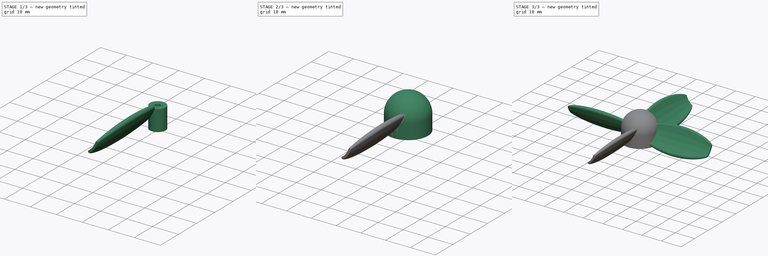
[diagram: build sequence overview — one tinted view per stage of 3, left to right]
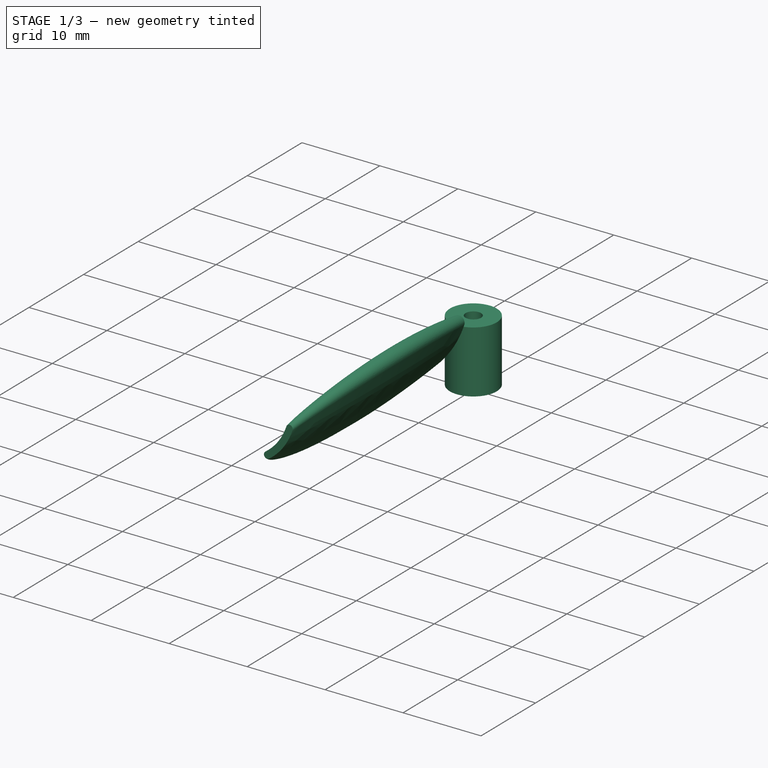
[diagram: stage 1 of 3 — iso view after this stage's code; geometry added in this stage tinted green]
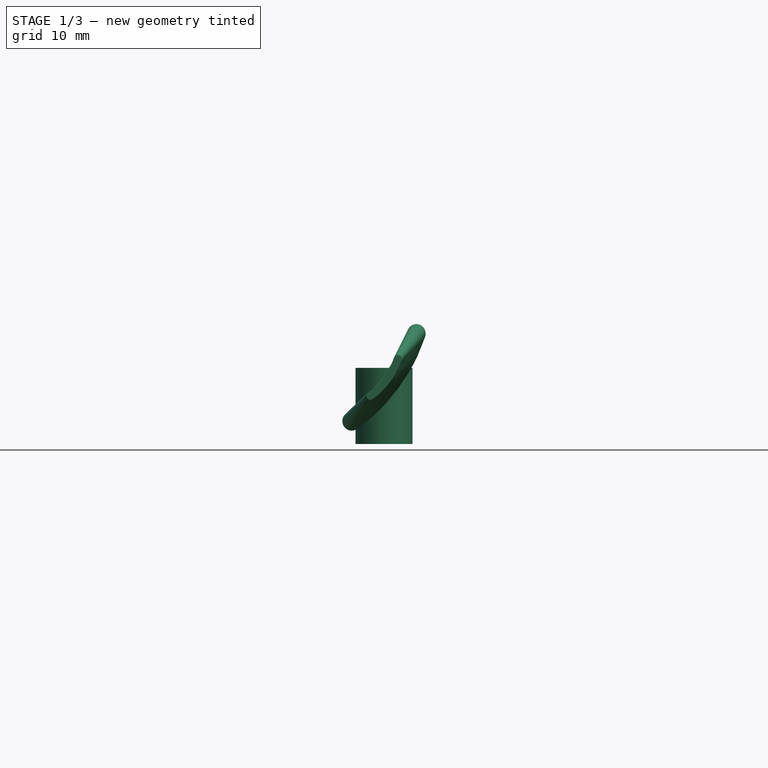
[diagram: stage 1 of 3 — front view after this stage's code; geometry added in this stage tinted green]
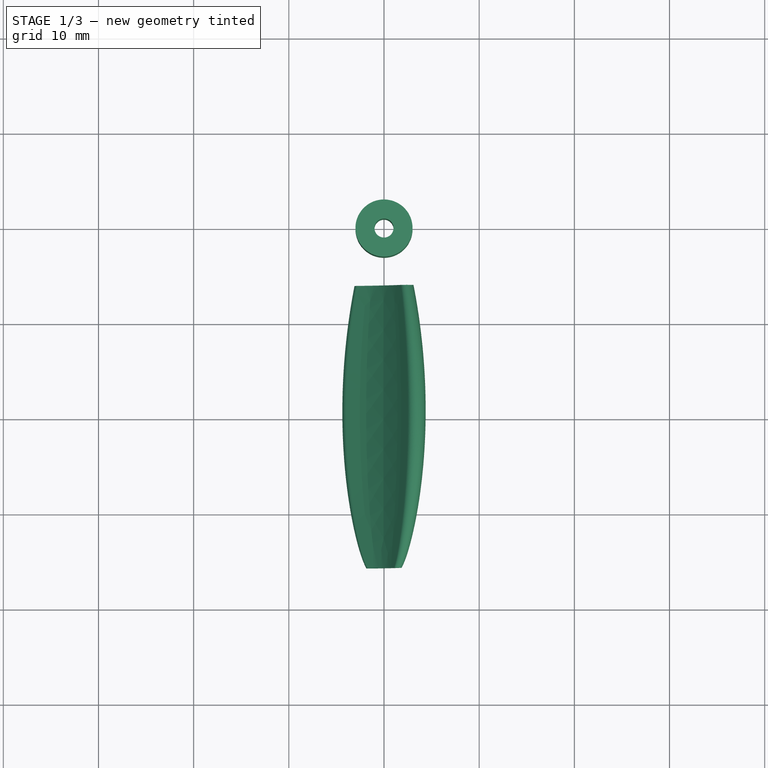
[diagram: stage 1 of 3 — top view after this stage's code; geometry added in this stage tinted green]
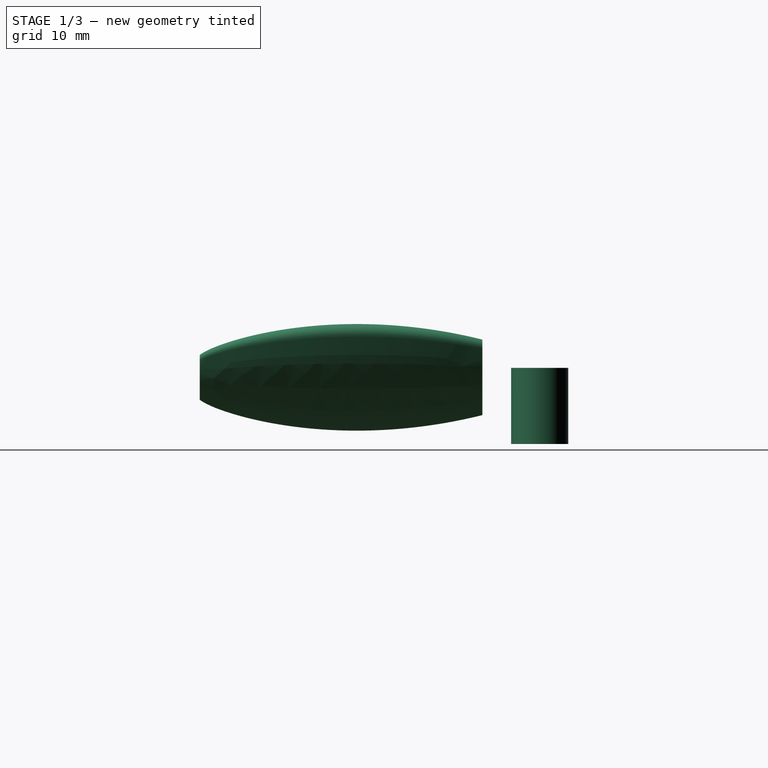
[diagram: stage 1 of 3 — right view after this stage's code; geometry added in this stage tinted green]
FCSTD DOCUMENT  (FreeCAD 1.0R38643 (Git))
Label: propeller
License: All rights reserved
LicenseURL: http://en.wikipedia.org/wiki/All_rights_reserved
objects: Sketcher::SketchObject×6, PartDesign::Plane×2, PartDesign::Pad×2, Part::FeaturePython×1, PartDesign::Revolution×1, PartDesign::SubShapeBinder×1, PartDesign::Boolean×1, PartDesign::PolarPattern×1, PartDesign::Body×1
note: 30 computed .brp shape members not serialized (recipe doc carries the construction recipe); baked Part::Feature solids carry a one-line shape summary decoded from their .brp

FEATURE [Sketcher::SketchObject] Sketch
  ArcFitTolerance = 1e-06
  AttachmentSupport = -> [XY_Plane]
  FullyConstrained = true
  MakeInternals = false
  MapMode = 5
  sketch-geometry (2):
    g0: Circle CenterX=0 CenterY=0 CenterZ=0 NormalX=0 NormalY=0 NormalZ=1 AngleXU=0 Radius=1
    g1: Circle CenterX=0 CenterY=0 CenterZ=0 NormalX=0 NormalY=0 NormalZ=1 AngleXU=0 Radius=3
  constraints (4):
    c: Coincident(g0,g-1)
    c: Coincident(g1,g0)
    c: Diameter(g0) = 2
    c: Diameter(g1) = 6
FEATURE [Sketcher::SketchObject] Sketch001
  ArcFitTolerance = 1e-06
  AttachmentSupport = -> [XZ_Plane]
  FullyConstrained = false
  MakeInternals = false
  MapMode = 5
  Placement = pos=(0,0,0) rot=(1,0,0;1.5708rad)
  sketch-geometry (8):
    g0: ArcOfCircle CenterX=0 CenterY=8 CenterZ=0 NormalX=0 NormalY=0 NormalZ=1 AngleXU=0 Radius=8 StartAngle=1.5708 EndAngle=3.14159
    g1: LineSegment StartX=-8 StartY=8 StartZ=0 EndX=-6 EndY=8 EndZ=0
    g2: LineSegment StartX=-3 StartY=8 StartZ=0 EndX=-3 EndY=13.1962 EndZ=0
    g3: LineSegment StartX=-3 StartY=8 StartZ=0 EndX=-1 EndY=8 EndZ=0
    g4: LineSegment StartX=-1 StartY=8 StartZ=0 EndX=-1 EndY=13.9161 EndZ=0
    g5: ArcOfCircle CenterX=0 CenterY=8 CenterZ=0 NormalX=0 NormalY=0 NormalZ=1 AngleXU=0 Radius=6 StartAngle=1.5708 EndAngle=1.73824
    g6: ArcOfCircle CenterX=0 CenterY=8 CenterZ=0 NormalX=0 NormalY=0 NormalZ=1 AngleXU=0 Radius=6 StartAngle=2.0944 EndAngle=3.14159
    g7: LineSegment StartX=5e-16 StartY=16 StartZ=0 EndX=1.63e-14 EndY=14 EndZ=0
  constraints (20):
    c: DistanceX(g0,g0) = 8
    c: PointOnObject(g0,g-2)
    c: Coincident(g1,g0)
    c: Horizontal(g1)
    c: Vertical(g2)
    c: Coincident(g3,g2)
    c: Coincident(g4,g3)
    c: Vertical(g4)
    c: Coincident(g6,g1)
    c: PointOnObject(g5,g-2)
    c: Horizontal(g1,g2)
    c: Coincident(g0,g5)
    c: Distance(g1,g1) = 2
    c: PointOnObject(g2,g6)
    c: Equal(g5,g6)
    c: Coincident(g5,g4)
    c: PointOnObject(g6,g2)
    c: Coincident(g5,g6)
    c: Coincident(g7,g0)
    c: Coincident(g7,g5)
FEATURE [Sketcher::SketchObject] Sketch003
  ArcFitTolerance = 1e-06
  AttachmentOffset = pos=(0,0,6) rot=(0,0,1;0rad)
  AttachmentSupport = -> [XZ_Plane]
  FullyConstrained = false
  MakeInternals = false
  MapMode = 5
  Placement = pos=(0,-6,1.3e-15) rot=(1,0,0;1.5708rad)
  sketch-geometry (4):
    g0: ArcOfCircle CenterX=-10.4556 CenterY=14.5912 CenterZ=0 NormalX=0 NormalY=0 NormalZ=1 AngleXU=0 Radius=13.0385 StartAngle=5.31324 EndAngle=5.94797
    g1: ArcOfCircle CenterX=-10.4556 CenterY=14.5912 CenterZ=0 NormalX=0 NormalY=0 NormalZ=1 AngleXU=0 Radius=14.5385 StartAngle=5.31324 EndAngle=5.94797
    g2: ArcOfCircle CenterX=-2.66038 CenterY=3.21765 CenterZ=0 NormalX=0 NormalY=0 NormalZ=1 AngleXU=0 Radius=0.75 StartAngle=2.17164 EndAngle=5.31324
    g3: ArcOfCircle CenterX=2.56545 CenterY=10.0552 CenterZ=0 NormalX=0 NormalY=0 NormalZ=1 AngleXU=0 Radius=0.75 StartAngle=5.94797 EndAngle=9.08956
  constraints (6):
    c: Coincident(g1,g0)
    c: Tangent(g2,g0) = 1.5708
    c: Tangent(g2,g1) = -1.5708
    c: Tangent(g3,g0) = 1.5708
    c: Tangent(g3,g1) = -1.5708
    c: Distance(g0,g1) = 1.5
FEATURE [PartDesign::Plane] DatumPlane
  AttachmentOffset = pos=(0,0,7) rot=(0,-1,0;0.907571rad)
  AttachmentSupport = -> [XY_Plane]
  Length = 98.8252
  MapMode = 5
  Placement = pos=(0,0,7) rot=(0,-1,0;0.907571rad)
  ResizeMode = 0
  Width = 86.8846
FEATURE [Sketcher::SketchObject] Sketch004
  ArcFitTolerance = 1e-06
  AttachmentSupport = -> [DatumPlane]
  ExternalGeometry = -> [Sketch003]
  FullyConstrained = false
  MakeInternals = false
  MapMode = 5
  Placement = pos=(0,0,7) rot=(0,-1,0;0.907571rad)
  sketch-geometry (14):
    g0: Circle [constr] CenterX=-10.3432 CenterY=-22.787 CenterZ=0 NormalX=0 NormalY=0 NormalZ=1 AngleXU=0 Radius=1
    g1: Circle [constr] CenterX=-3.93662 CenterY=-35.649 CenterZ=0 NormalX=0 NormalY=0 NormalZ=1 AngleXU=0 Radius=1
    g2: BSplineCurve PolesCount=4 KnotsCount=2 Degree=3 IsPeriodic=0
    g3: GeomPoint [constr] X=-5.02646 Y=-6 Z=0
    g4: GeomPoint [constr] X=-2.75298 Y=-35.8752 Z=0
    g5: Circle [constr] CenterX=-5.02646 CenterY=-6 CenterZ=0 NormalX=0 NormalY=0 NormalZ=1 AngleXU=0 Radius=1
    g6: Circle [constr] CenterX=-2.75298 CenterY=-35.8752 CenterZ=0 NormalX=0 NormalY=0 NormalZ=1 AngleXU=0 Radius=1
    g7: Circle [constr] CenterX=10.3432 CenterY=-22.787 CenterZ=0 NormalX=0 NormalY=0 NormalZ=1 AngleXU=0 Radius=1
    g8: Circle [constr] CenterX=3.93662 CenterY=-35.649 CenterZ=0 NormalX=0 NormalY=0 NormalZ=1 AngleXU=0 Radius=1
    g9: BSplineCurve PolesCount=4 KnotsCount=2 Degree=3 IsPeriodic=0
    g10: GeomPoint [constr] X=5.02646 Y=-6 Z=0
    g11: GeomPoint [constr] X=2.75298 Y=-35.8752 Z=0
    g12: Circle [constr] CenterX=5.02646 CenterY=-6 CenterZ=0 NormalX=0 NormalY=0 NormalZ=1 AngleXU=0 Radius=1
    g13: Circle [constr] CenterX=2.75298 CenterY=-35.8752 CenterZ=0 NormalX=0 NormalY=0 NormalZ=1 AngleXU=0 Radius=1
  constraints (20):
    c: Weight(g5) = 1
    c: Equal(g5,g0)
    c: Equal(g5,g1)
    c: Equal(g5,g6)
    c: InternalAlignment(g5,g2)
    c: InternalAlignment(g0,g2)
    c: InternalAlignment(g1,g2)
    c: InternalAlignment(g6,g2)
    c: InternalAlignment(g3,g2)
    c: InternalAlignment(g4,g2)
    c: Weight(g12) = 1
    c: Equal(g12,g7)
    c: Equal(g12,g8)
    c: Equal(g12,g13)
    c: InternalAlignment(g12,g9)
    c: InternalAlignment(g7,g9)
    c: InternalAlignment(g8,g9)
    c: InternalAlignment(g13,g9)
    c: InternalAlignment(g10,g9)
    c: InternalAlignment(g11,g9)
FEATURE [PartDesign::Plane] DatumPlane001
  AttachmentOffset = pos=(0,0,6) rot=(0,-1,0;2.47837rad)
  AttachmentSupport = -> [XY_Plane]
  Length = 102.86
  MapMode = 5
  Placement = pos=(0,0,6) rot=(0,-1,0;2.47837rad)
  ResizeMode = 0
  Width = 87.2231
  expr: .AttachmentOffset.Rotation.Angle = 52 + 90
FEATURE [Sketcher::SketchObject] Sketch005
  ArcFitTolerance = 1e-06
  AttachmentSupport = -> [DatumPlane001]
  ExternalGeometry = -> [Sketch003,Sketch004]
  FullyConstrained = false
  MakeInternals = false
  MapMode = 5
  Placement = pos=(4e-16,0,6) rot=(0,1,0;3.80482rad)
  sketch-geometry (14):
    g0: BSplineCurve PolesCount=4 KnotsCount=2 Degree=3 IsPeriodic=0
    g1-g4: Circle [constr] x4 (B-spline internal-alignment scaffolding for g0; pole/knot coordinates omitted)
    g5: GeomPoint [constr] X=0.819099 Y=-6.02055 Z=0
    g6: GeomPoint [constr] X=1.55398 Y=-35.7031 Z=0
    g7: BSplineCurve PolesCount=4 KnotsCount=2 Degree=3 IsPeriodic=0
    g8-g11: Circle [constr] x4 (B-spline internal-alignment scaffolding for g7; pole/knot coordinates omitted)
    g12: GeomPoint [constr] X=-1.26895 Y=-6.02055 Z=0
    g13: GeomPoint [constr] X=-0.534069 Y=-35.7236 Z=0
  constraints (13):
    c: Weight(g1) = 1
    c: Equal(g1,g2)
    c: Equal(g1,g3)
    c: Equal(g1,g4)
    c: InternalAlignment(g1-g6 -> g0) x6
    c: PointOnObject(g4,g3)
    c: Weight(g8) = 1
    c: Equal(g8,g9)
    c: Equal(g8,g10)
    c: Equal(g8,g11)
    c: InternalAlignment(g8-g13 -> g7) x6
    c: PointOnObject(g11,g10)
    c: Horizontal(g7,g0)
FEATURE [Part::FeaturePython] CurvedArray  # WARN: FeaturePython — macro-defined, semantics opaque (R4)
  Axis = (0,1,0)
  Base = -> Sketch003
  Distribution = 0
  DistributionReverse = false
  Hullcurves = -> [Sketch004,Sketch005]
  Items = 20
  OffsetEnd = 0
  OffsetStart = 0
  Solid = true
  Surface = false
  Twist = 0
FEATURE [PartDesign::Pad] Pad
  Direction = (0,0,1)
  Length = 8
  Length2 = 10
  Profile = -> Sketch
  ReferenceAxis = -> Sketch [N_Axis]
  Suppressed = false
  Type = 0
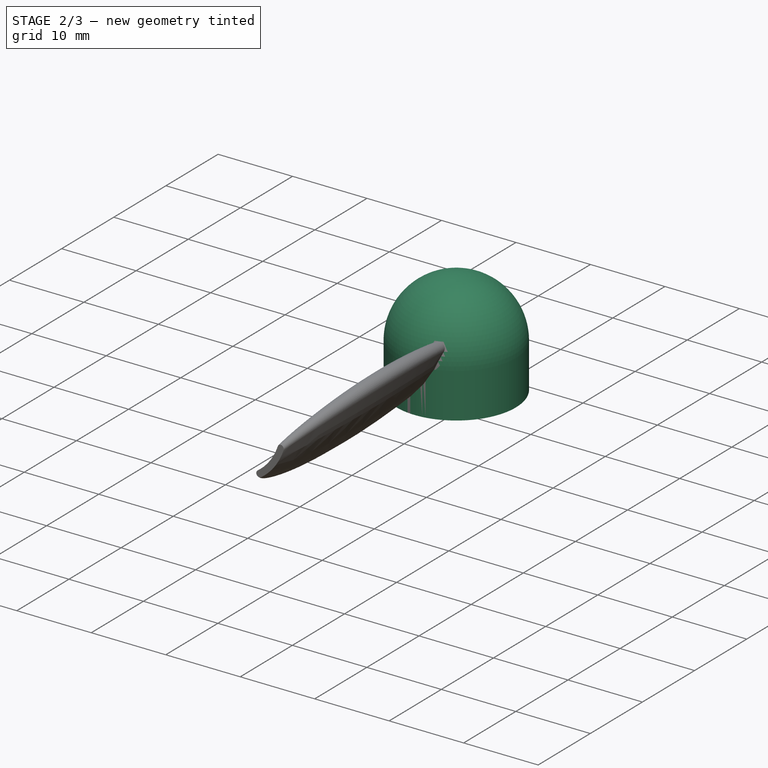
[diagram: stage 2 of 3 — iso view after this stage's code; geometry added in this stage tinted green]
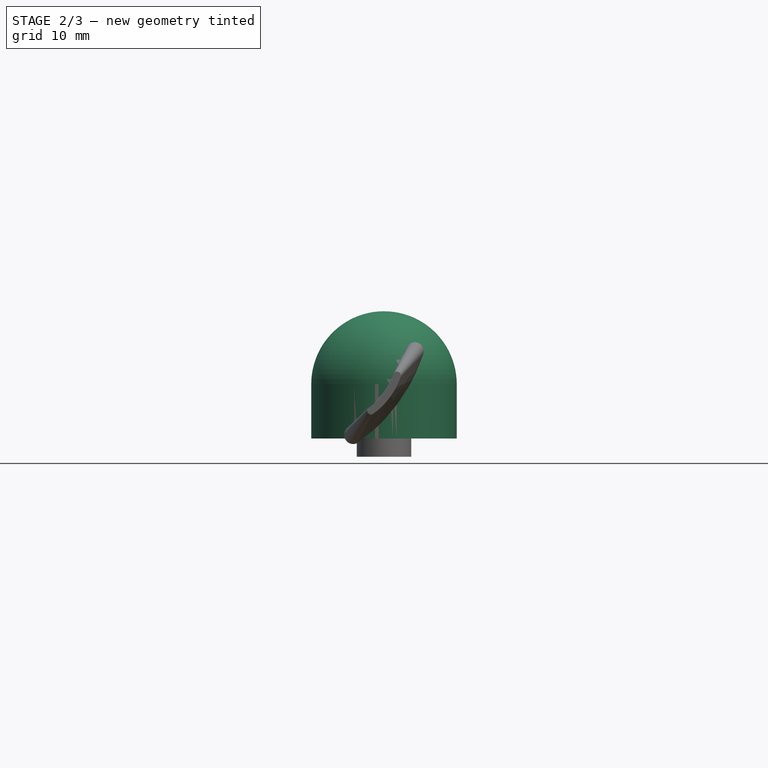
[diagram: stage 2 of 3 — front view after this stage's code; geometry added in this stage tinted green]
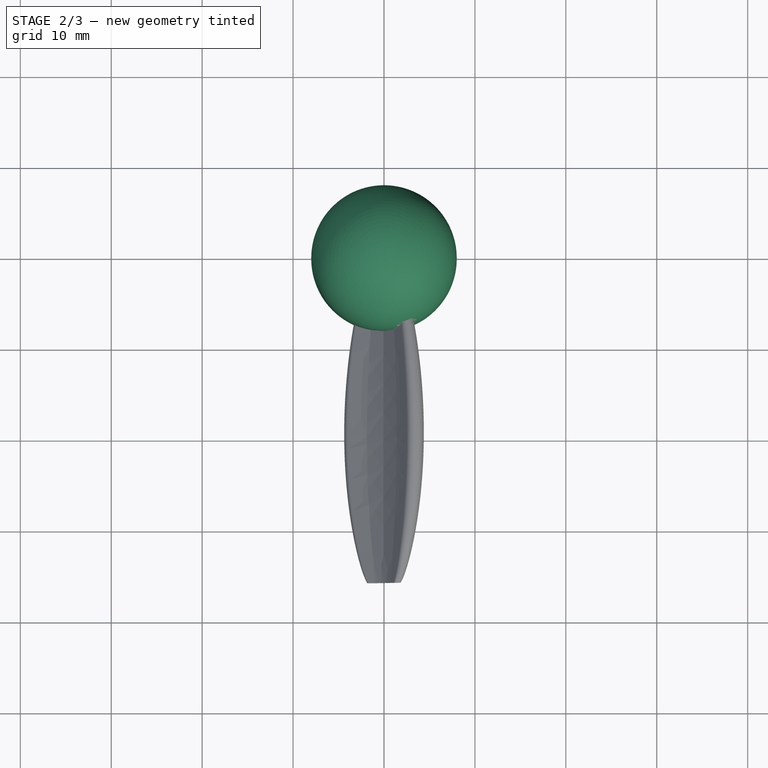
[diagram: stage 2 of 3 — top view after this stage's code; geometry added in this stage tinted green]
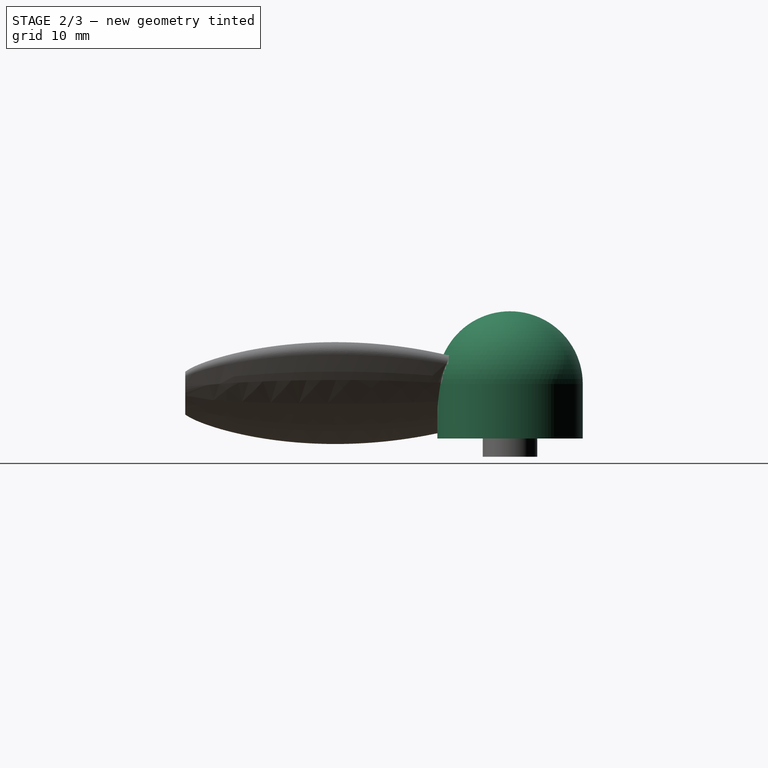
[diagram: stage 2 of 3 — right view after this stage's code; geometry added in this stage tinted green]
FEATURE [PartDesign::Revolution] Revolution
  Angle = 360
  Angle2 = 60
  Axis = (0,2e-16,1)
  Base = (0,0,0)
  BaseFeature = -> Pad
  Profile = -> Sketch001
  ReferenceAxis = -> Sketch001 [V_Axis]
  Suppressed = false
  Type = 0
FEATURE [Sketcher::SketchObject] Sketch002
  ArcFitTolerance = 1e-06
  AttachmentSupport = -> [Revolution]
  ExternalGeometry = -> [Revolution]
  FullyConstrained = false
  MakeInternals = false
  MapMode = 5
  Placement = pos=(0,1.8e-15,8) rot=(1,0,0;3.14159rad)
  sketch-geometry (2):
    g0: Circle CenterX=0 CenterY=0 CenterZ=0 NormalX=0 NormalY=0 NormalZ=1 AngleXU=0 Radius=8
    g1: Circle CenterX=0 CenterY=0 CenterZ=0 NormalX=0 NormalY=0 NormalZ=1 AngleXU=0 Radius=6
  constraints (2):
    c: Coincident(g0,g-1)
    c: Coincident(g1,g0)
FEATURE [PartDesign::Pad] Pad001
  BaseFeature = -> Revolution
  Direction = (0,0,-1)
  Length = 6
  Length2 = 10
  Profile = -> Sketch002
  ReferenceAxis = -> Sketch002 [N_Axis]
  Suppressed = false
  Type = 0
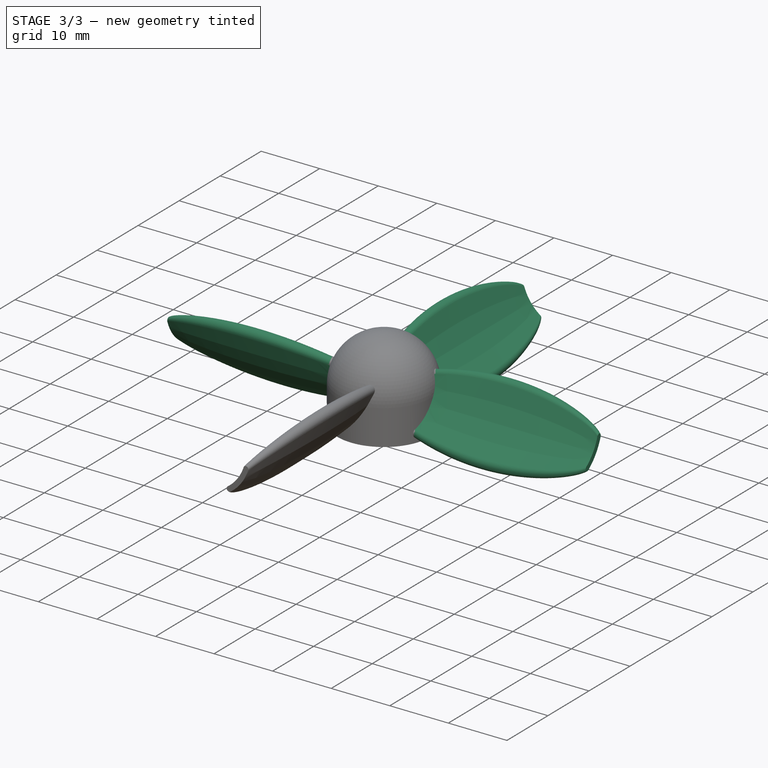
[diagram: stage 3 of 3 — iso view after this stage's code; geometry added in this stage tinted green]
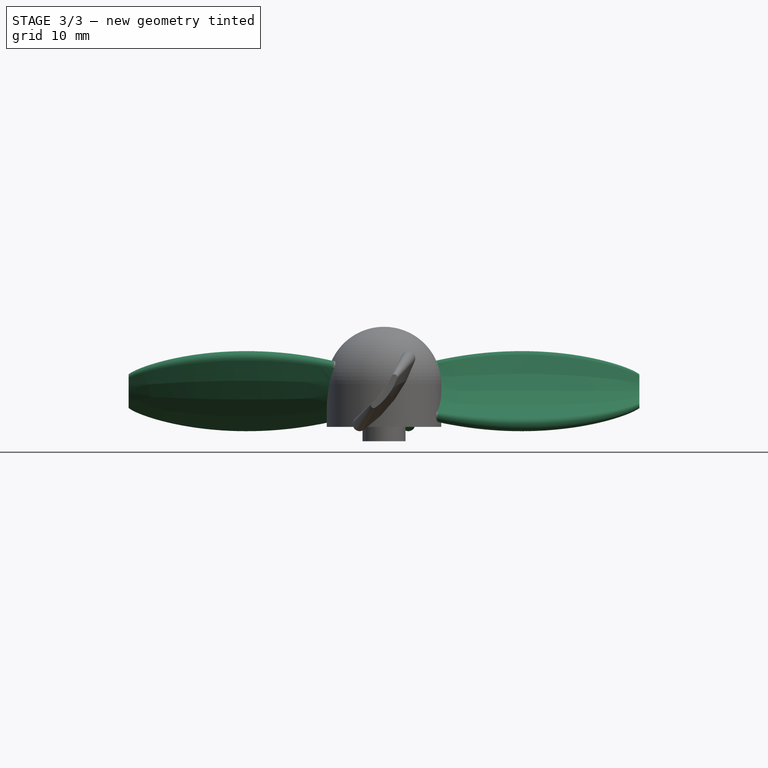
[diagram: stage 3 of 3 — front view after this stage's code; geometry added in this stage tinted green]
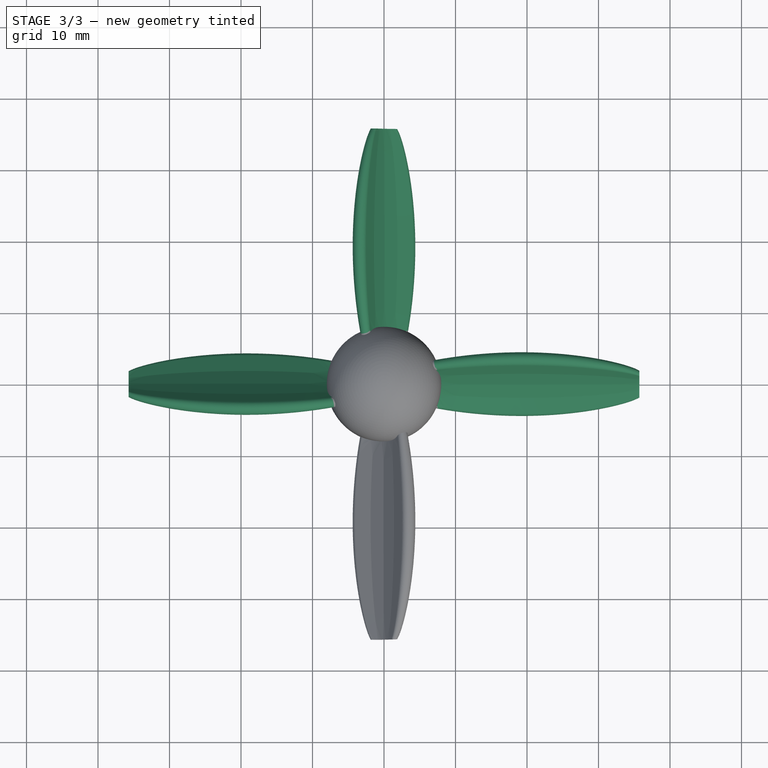
[diagram: stage 3 of 3 — top view after this stage's code; geometry added in this stage tinted green]
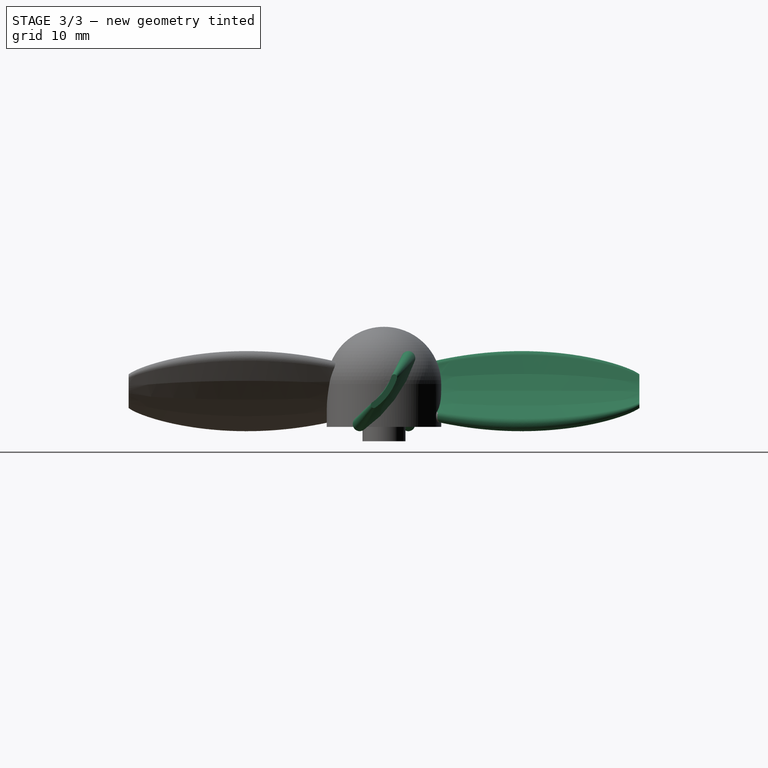
[diagram: stage 3 of 3 — right view after this stage's code; geometry added in this stage tinted green]
FEATURE [PartDesign::SubShapeBinder] Binder
  BindCopyOnChange = 0
  BindMode = 0
  ClaimChildren = false
  Context = -> Body [Binder.]
  Fuse = false
  MakeFace = true
  OffsetFill = false
  OffsetIntersection = false
  OffsetJoinType = 0
  OffsetOpenResult = false
  PartialLoad = false
  Relative = true
  Support = -> [CurvedArray]
  _Version = 2
FEATURE [PartDesign::Boolean] Boolean
  BaseFeature = -> Pad001
  Group = -> [Binder]
  Suppressed = false
  Type = 0
  UsePlacement = true
FEATURE [PartDesign::PolarPattern] PolarPattern
  Angle = 360
  Axis = -> Z_Axis
  BaseFeature = -> Boolean
  Mode = 0
  Occurrences = 4
  Offset = 120
  Originals = -> [Boolean]
  Suppressed = false
  TransformMode = 1
FEATURE [PartDesign::Body] Body
  AllowCompound = false
  Group = -> [Sketch,Pad,Sketch001,Revolution,Sketch002,Pad001,Sketch003,DatumPlane,Sketch004,DatumPlane001,Sketch005,Boolean,PolarPattern]
  Origin = -> Origin
  Tip = -> PolarPattern
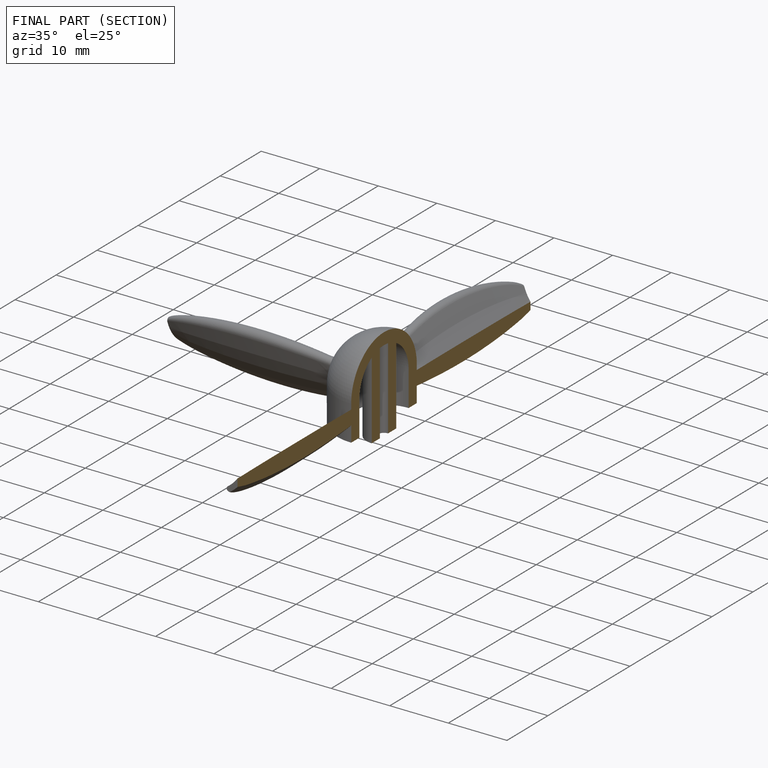
[diagram: finished part — half-section view (interior)]
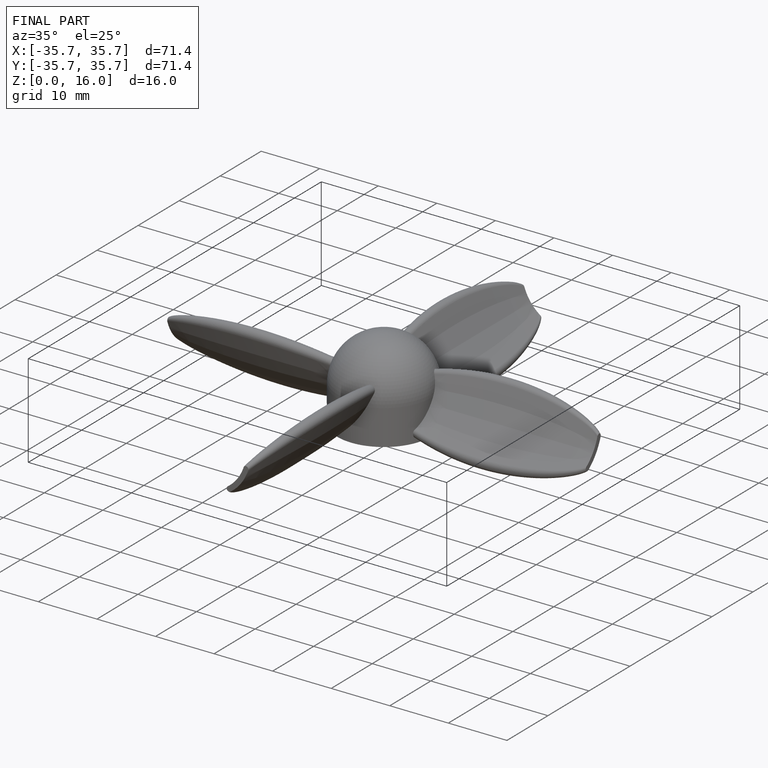
[diagram: finished part — iso view with bounding-box wireframe]
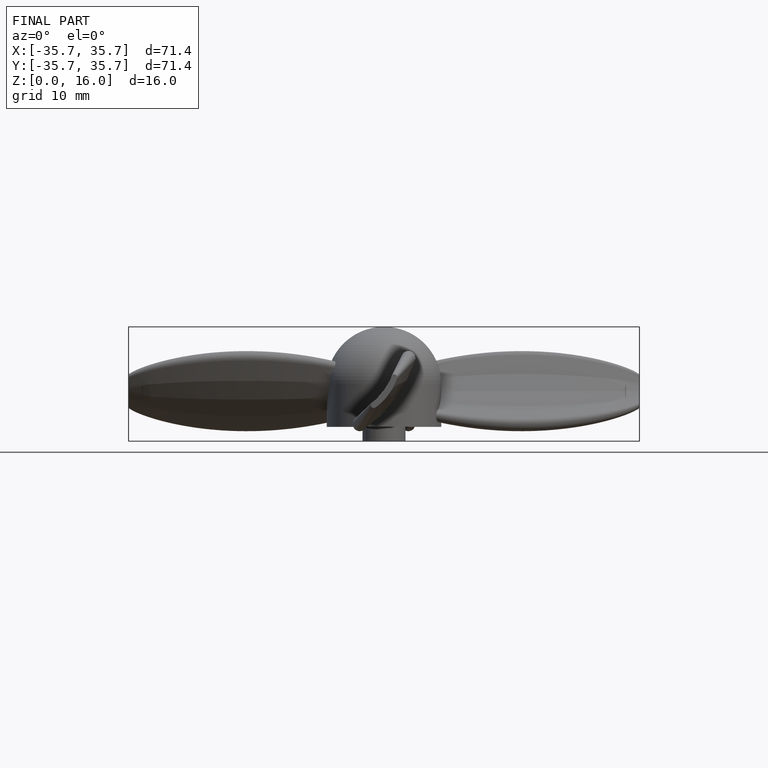
[diagram: finished part — front view with bounding-box wireframe]
